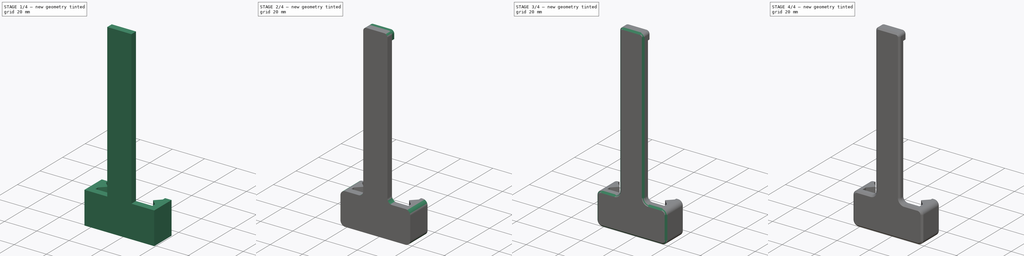
[diagram: build sequence overview — one tinted view per stage of 4, left to right]
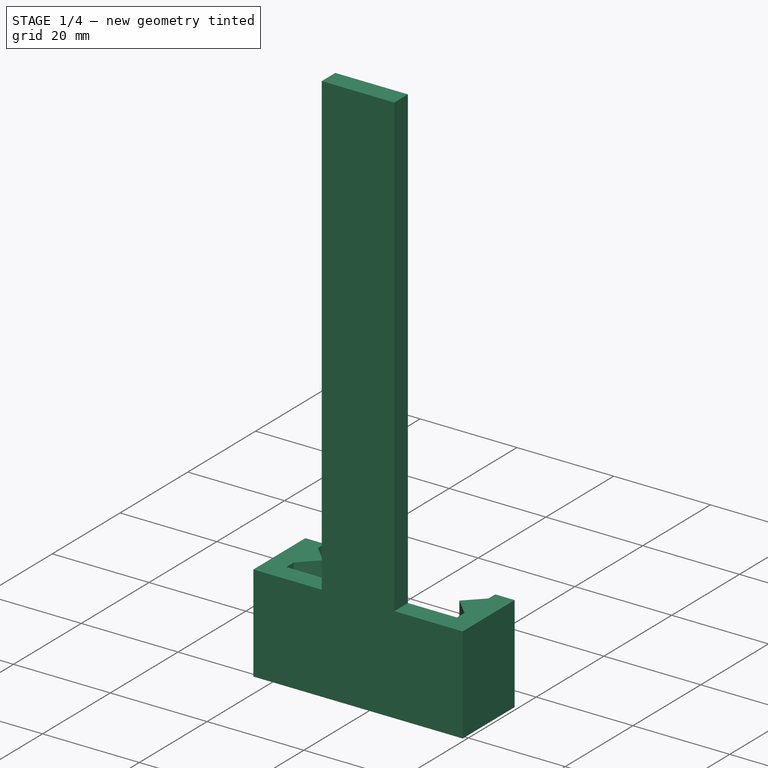
[diagram: stage 1 of 4 — iso view after this stage's code; geometry added in this stage tinted green]
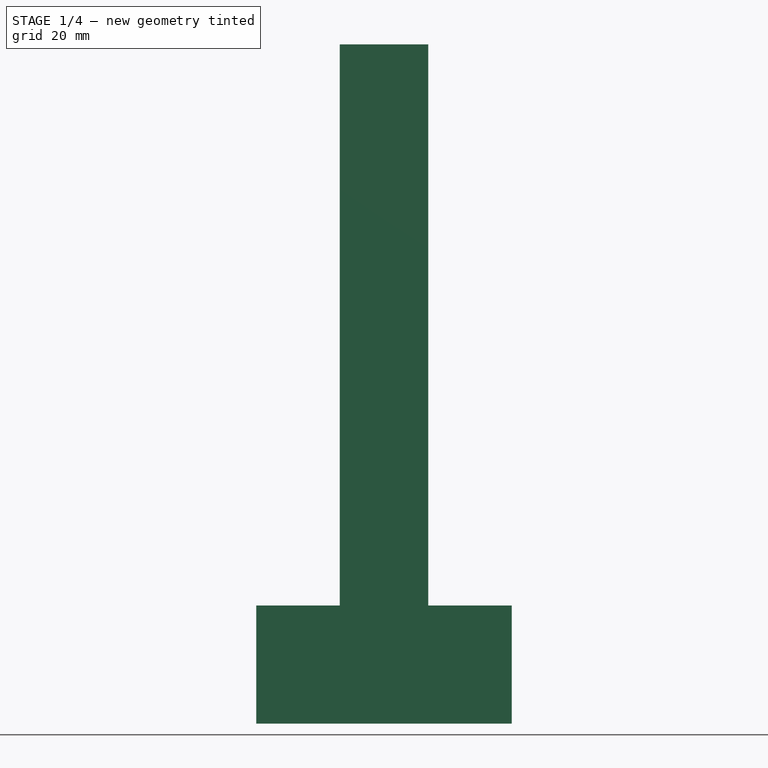
[diagram: stage 1 of 4 — front view after this stage's code; geometry added in this stage tinted green]
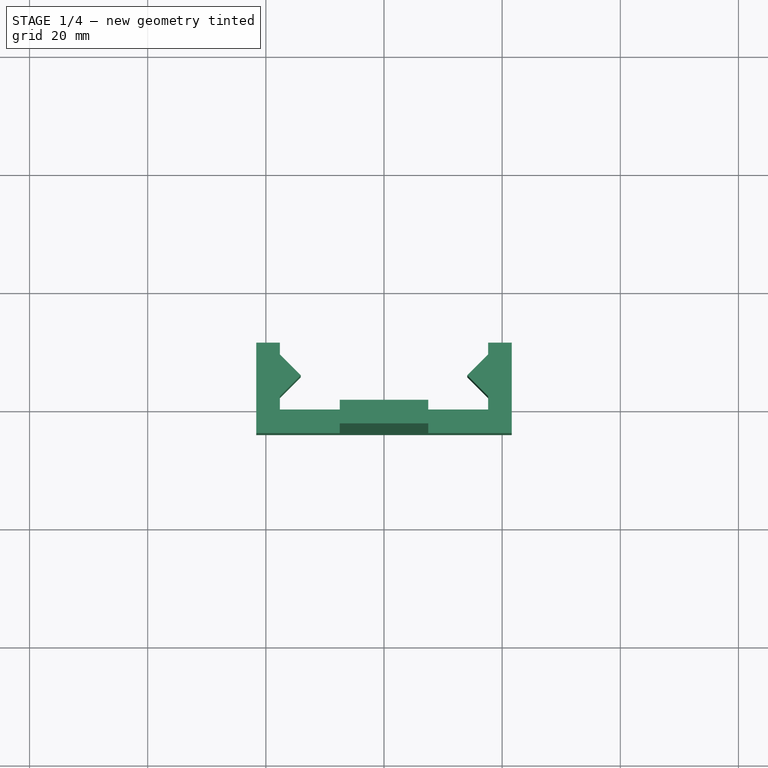
[diagram: stage 1 of 4 — top view after this stage's code; geometry added in this stage tinted green]
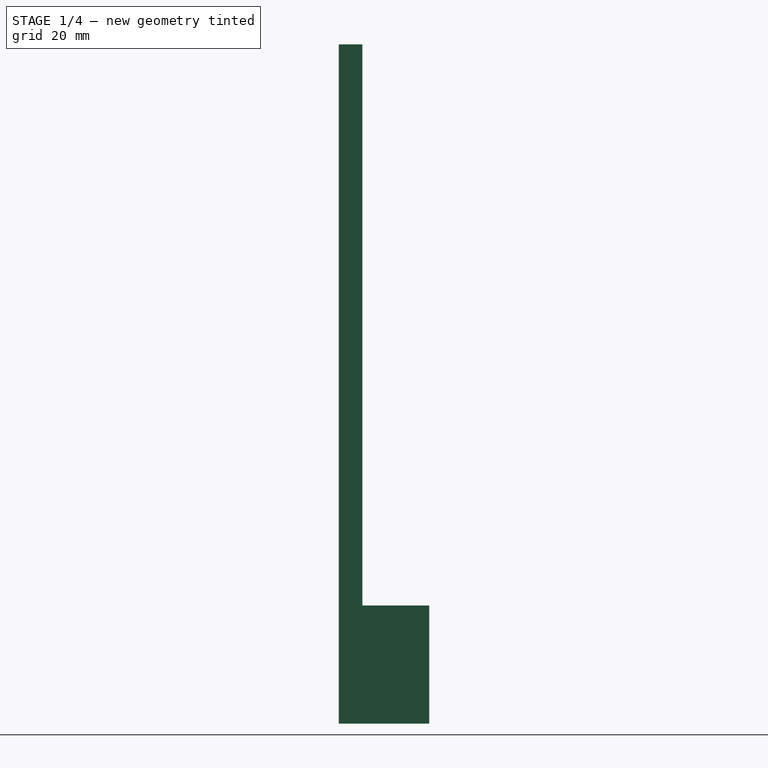
[diagram: stage 1 of 4 — right view after this stage's code; geometry added in this stage tinted green]
FCSTD DOCUMENT  (FreeCAD 0.19R)
Label: SwitchCaseSmallLatch2
License: All rights reserved
LicenseURL: http://en.wikipedia.org/wiki/All_rights_reserved
objects: PartDesign::Fillet×6, Sketcher::SketchObject×3, PartDesign::Pad×2, PartDesign::Pocket×1, PartDesign::Chamfer×1, PartDesign::Body×1
note: 24 computed .brp shape members not serialized (recipe doc carries the construction recipe); baked Part::Feature solids carry a one-line shape summary decoded from their .brp

FEATURE [Sketcher::SketchObject] Sketch
  FullyConstrained = true
  MapMode = 5
  Support = -> [XY_Plane]
  sketch-geometry (14):
    g0: LineSegment StartX=-17.625 StartY=0 StartZ=0 EndX=17.625 EndY=0 EndZ=0
    g1: LineSegment StartX=17.625 StartY=0 StartZ=0 EndX=17.625 EndY=2.25 EndZ=0
    g2: LineSegment StartX=17.625 StartY=2.25 StartZ=0 EndX=14.0895 EndY=5.78553 EndZ=0
    g3: LineSegment StartX=14.0895 StartY=5.78553 StartZ=0 EndX=17.625 EndY=9.32107 EndZ=0
    g4: LineSegment StartX=17.625 StartY=9.32107 StartZ=0 EndX=17.625 EndY=11.3211 EndZ=0
    g5: LineSegment StartX=17.625 StartY=11.3211 StartZ=0 EndX=21.625 EndY=11.3211 EndZ=0
    g6: LineSegment StartX=21.625 StartY=11.3211 StartZ=0 EndX=21.625 EndY=-4 EndZ=0
    g7: LineSegment StartX=21.625 StartY=-4 StartZ=0 EndX=-21.625 EndY=-4 EndZ=0
    g8: LineSegment StartX=-21.625 StartY=-4 StartZ=0 EndX=-21.625 EndY=11.3211 EndZ=0
    g9: LineSegment StartX=-21.625 StartY=11.3211 StartZ=0 EndX=-17.625 EndY=11.3211 EndZ=0
    g10: LineSegment StartX=-17.625 StartY=11.3211 StartZ=0 EndX=-17.625 EndY=9.32107 EndZ=0
    g11: LineSegment StartX=-17.625 StartY=9.32107 StartZ=0 EndX=-14.0895 EndY=5.78553 EndZ=0
    g12: LineSegment StartX=-14.0895 StartY=5.78553 StartZ=0 EndX=-17.625 EndY=2.25 EndZ=0
    g13: LineSegment StartX=-17.625 StartY=2.25 StartZ=0 EndX=-17.625 EndY=0 EndZ=0
  constraints (41):
    c: PointOnObject(g0,g-1)
    c: PointOnObject(g0,g-1)
    c: Coincident(g0,g1)
    c: Coincident(g1,g2)
    c: Coincident(g2,g3)
    c: Coincident(g3,g4)
    c: Coincident(g4,g5)
    c: Horizontal(g5)
    c: Coincident(g5,g6)
    c: Vertical(g6)
    c: Coincident(g6,g7)
    c: Coincident(g7,g8)
    c: Coincident(g8,g9)
    c: Horizontal(g9)
    c: Coincident(g9,g10)
    c: Coincident(g10,g11)
    c: Coincident(g11,g12)
    c: Coincident(g12,g13)
    c: Coincident(g13,g0)
    c: Vertical(g8)
    c: Vertical(g13)
    c: Vertical(g10)
    c: Vertical(g1)
    c: Vertical(g4)
    c: Equal(g11,g12)
    c: Equal(g12,g3)
    c: Equal(g3,g2)
    c: Angle(g3) = 0.785398
    c: Angle(g11) = -0.785398
    c: Perpendicular(g11,g12)
    c: Perpendicular(g3,g2)
    c: Distance(g13) = 2.25
    c: Distance(g2) = 5
    c: Equal(g10,g4)
    c: Distance(g4) = 2
    c: Equal(g1,g13)
    c: Equal(g9,g5)
    c: Distance(g9) = 4
    c: Distance(g0,g7) = 4
    c: Distance(g0) = 35.25
    c: Symmetric(g6,g7,g-2)
FEATURE [PartDesign::Pad] Pad
  Direction = (1,1,1)
  Length = 115
  Length2 = 100
  Profile = -> Sketch
  Type = 0
FEATURE [Sketcher::SketchObject] Sketch001
  FullyConstrained = true
  MapMode = 5
  Placement = pos=(0,-4,0) rot=(1,0,0;1.5708rad)
  Support = -> [Pad]
  sketch-geometry (8):
    g0: LineSegment StartX=7.5 StartY=130 StartZ=0 EndX=7.5 EndY=20 EndZ=0
    g1: LineSegment StartX=7.5 StartY=20 StartZ=0 EndX=48.935 EndY=20 EndZ=0
    g2: LineSegment StartX=48.935 StartY=20 StartZ=0 EndX=48.935 EndY=139.08 EndZ=0
    g3: LineSegment StartX=48.935 StartY=139.08 StartZ=0 EndX=-48.935 EndY=139.08 EndZ=0
    g4: LineSegment StartX=-48.935 StartY=139.08 StartZ=0 EndX=-48.935 EndY=20 EndZ=0
    g5: LineSegment StartX=-48.935 StartY=20 StartZ=0 EndX=-7.5 EndY=20 EndZ=0
    g6: LineSegment StartX=-7.5 StartY=20 StartZ=0 EndX=-7.5 EndY=130 EndZ=0
    g7: LineSegment StartX=-7.5 StartY=130 StartZ=0 EndX=7.5 EndY=130 EndZ=0
  constraints (21):
    c: Vertical(g0)
    c: Coincident(g0,g1)
    c: Horizontal(g1)
    c: Coincident(g1,g2)
    c: Coincident(g2,g3)
    c: Horizontal(g3)
    c: Coincident(g3,g4)
    c: Vertical(g4)
    c: Coincident(g4,g5)
    c: Coincident(g5,g6)
    c: Coincident(g6,g7)
    c: Coincident(g7,g0)
    c: Symmetric(g0,g6,g-2)
    c: Symmetric(g0,g5,g-2)
    c: Symmetric(g1,g4,g-2)
    c: Vertical(g2)
    c: Distance(g2) = 119.08
    c: DistanceY(g0) = 20
    c: Distance(g0) = 110
    c: Distance(g3) = 97.87
    c: Distance(g7) = 15
FEATURE [PartDesign::Pocket] Pocket
  BaseFeature = -> Pad
  Length = 5
  Length2 = 100
  Profile = -> Sketch001
  Type = 1
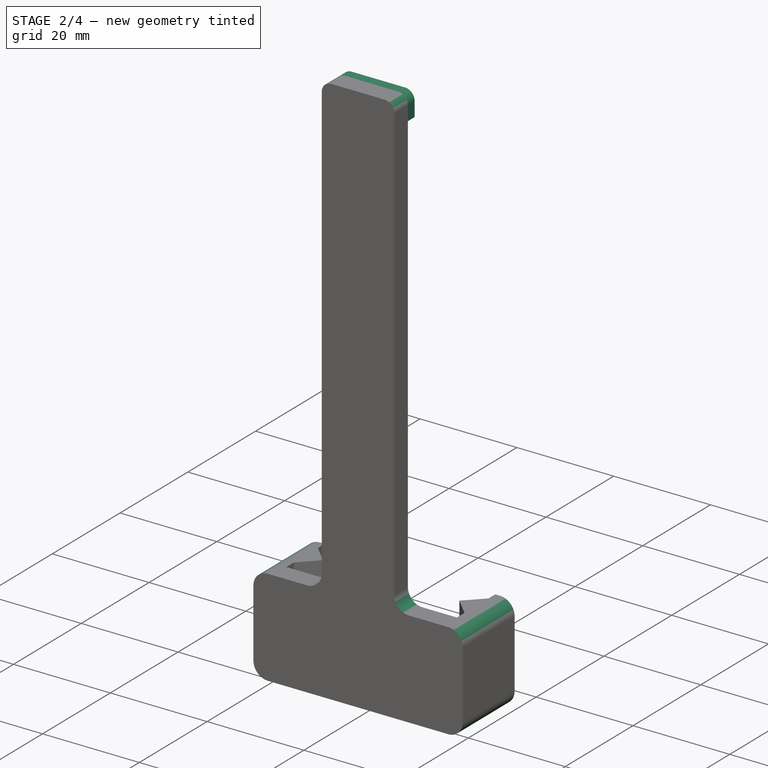
[diagram: stage 2 of 4 — iso view after this stage's code; geometry added in this stage tinted green]
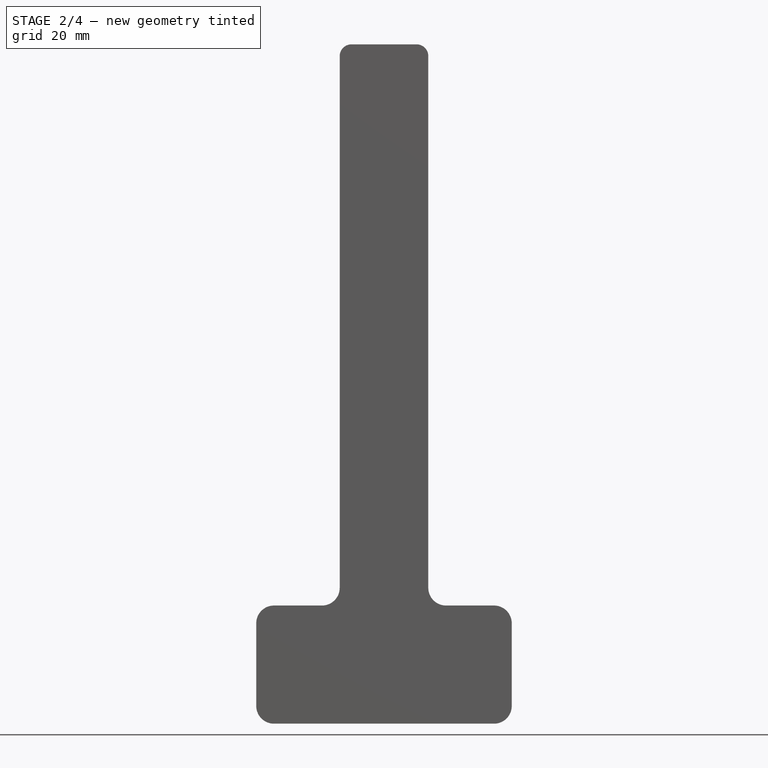
[diagram: stage 2 of 4 — front view after this stage's code; geometry added in this stage tinted green]
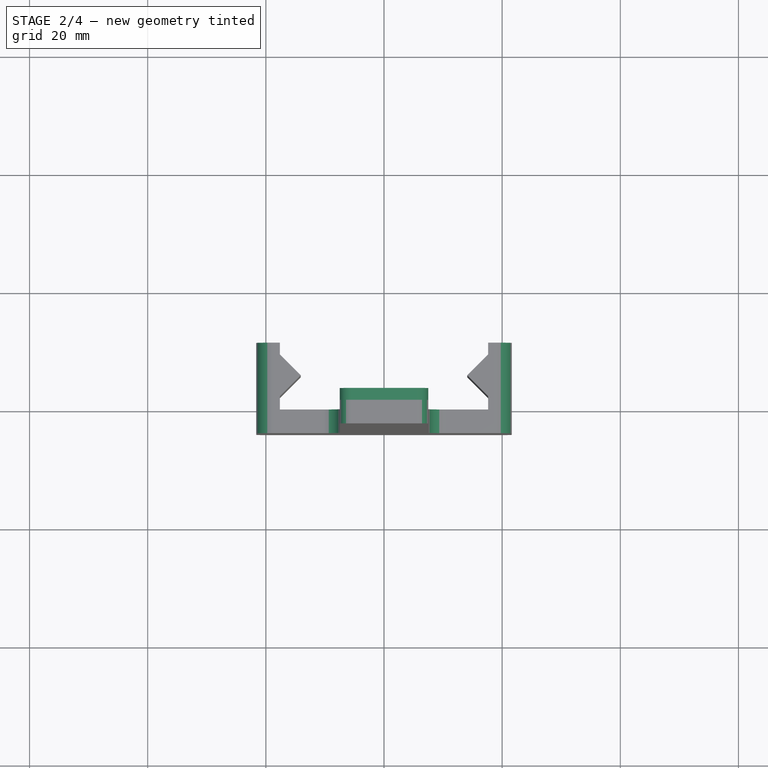
[diagram: stage 2 of 4 — top view after this stage's code; geometry added in this stage tinted green]
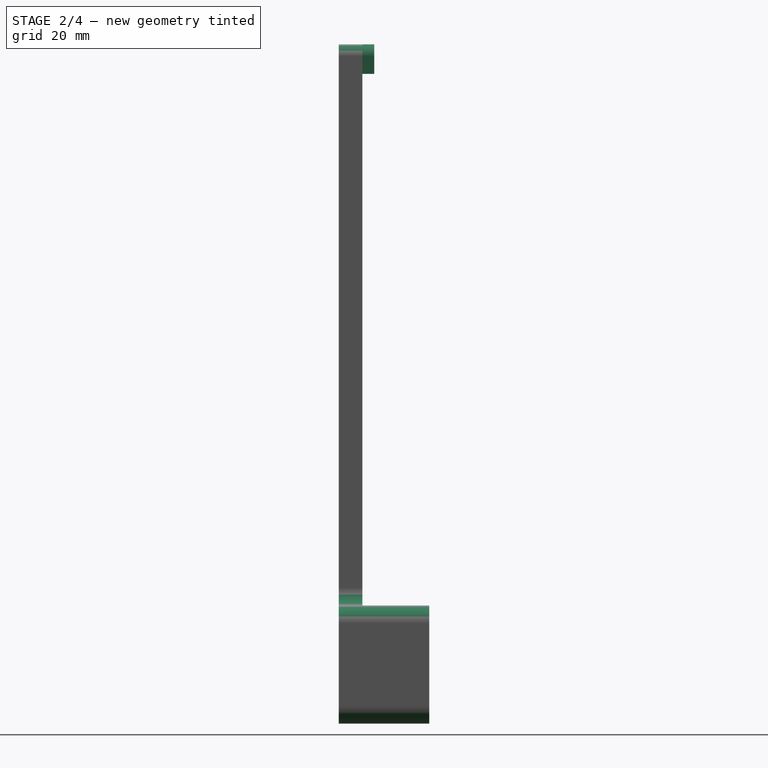
[diagram: stage 2 of 4 — right view after this stage's code; geometry added in this stage tinted green]
FEATURE [Sketcher::SketchObject] Sketch002
  ExternalGeometry = -> [Pocket]
  FullyConstrained = true
  MapMode = 5
  Placement = pos=(0,0,0) rot=(0,0.707107,0.707107;3.14159rad)
  Support = -> [Pocket]
  sketch-geometry (4):
    g0: LineSegment StartX=-7.5 StartY=115 StartZ=0 EndX=-7.5 EndY=110 EndZ=0
    g1: LineSegment StartX=-7.5 StartY=110 StartZ=0 EndX=7.5 EndY=110 EndZ=0
    g2: LineSegment StartX=7.5 StartY=110 StartZ=0 EndX=7.5 EndY=115 EndZ=0
    g3: LineSegment StartX=7.5 StartY=115 StartZ=0 EndX=-7.5 EndY=115 EndZ=0
  constraints (10):
    c: Coincident(g-5,g0)
    c: PointOnObject(g0,g-5)
    c: Coincident(g0,g1)
    c: PointOnObject(g1,g-4)
    c: Horizontal(g1)
    c: Coincident(g1,g2)
    c: Coincident(g2,g-4)
    c: Coincident(g2,g3)
    c: Coincident(g3,g0)
    c: Distance(g0) = 5
FEATURE [PartDesign::Pad] Pad001
  BaseFeature = -> Pocket
  Direction = (1,1,1)
  Length = 2
  Length2 = 100
  Profile = -> Sketch002
  Type = 0
FEATURE [PartDesign::Fillet] Fillet
  Base = -> Pad001 [Edge25,Edge14,Edge16,Edge47,Edge40,Edge30]
  BaseFeature = -> Pad001
  Radius = 3
  SupportTransform = false
FEATURE [PartDesign::Fillet] Fillet001
  Base = -> Fillet [Edge45,Edge24]
  BaseFeature = -> Fillet
  Radius = 2
  SupportTransform = false
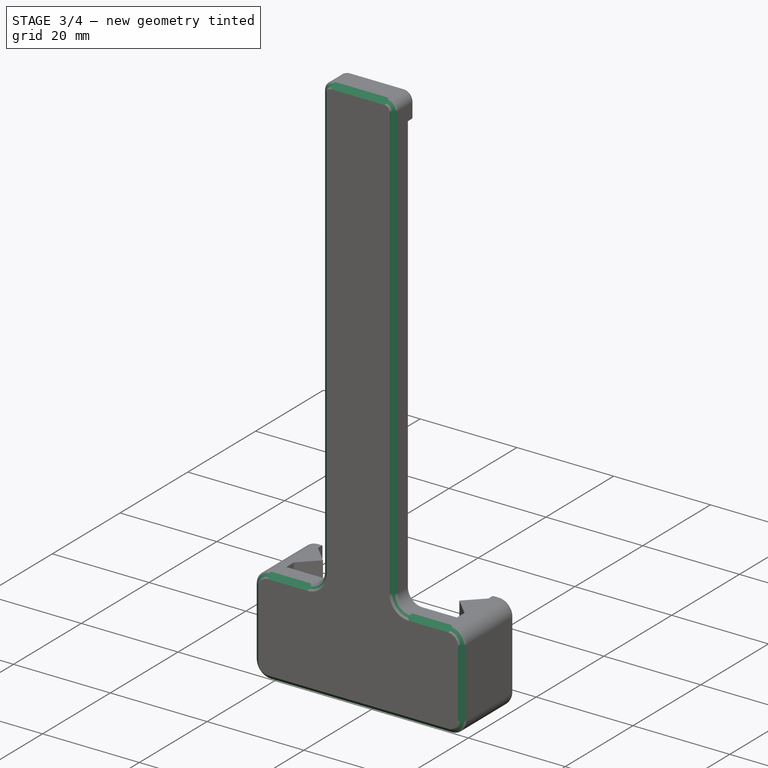
[diagram: stage 3 of 4 — iso view after this stage's code; geometry added in this stage tinted green]
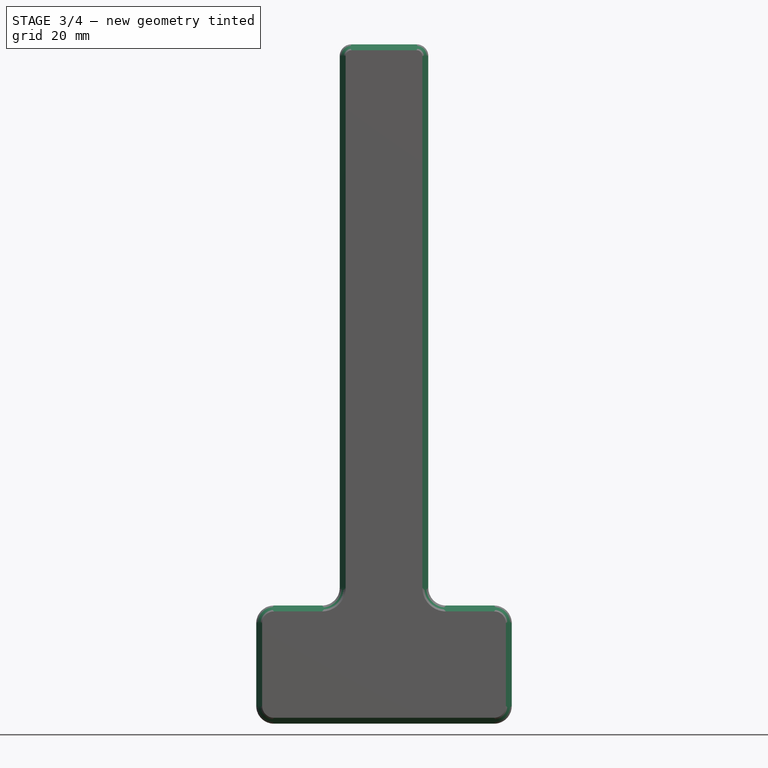
[diagram: stage 3 of 4 — front view after this stage's code; geometry added in this stage tinted green]
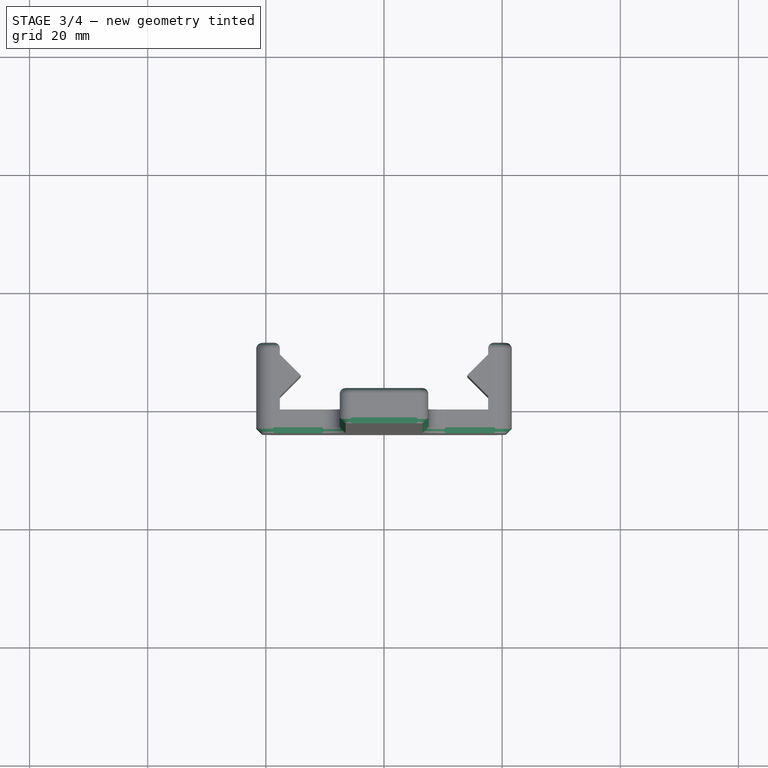
[diagram: stage 3 of 4 — top view after this stage's code; geometry added in this stage tinted green]
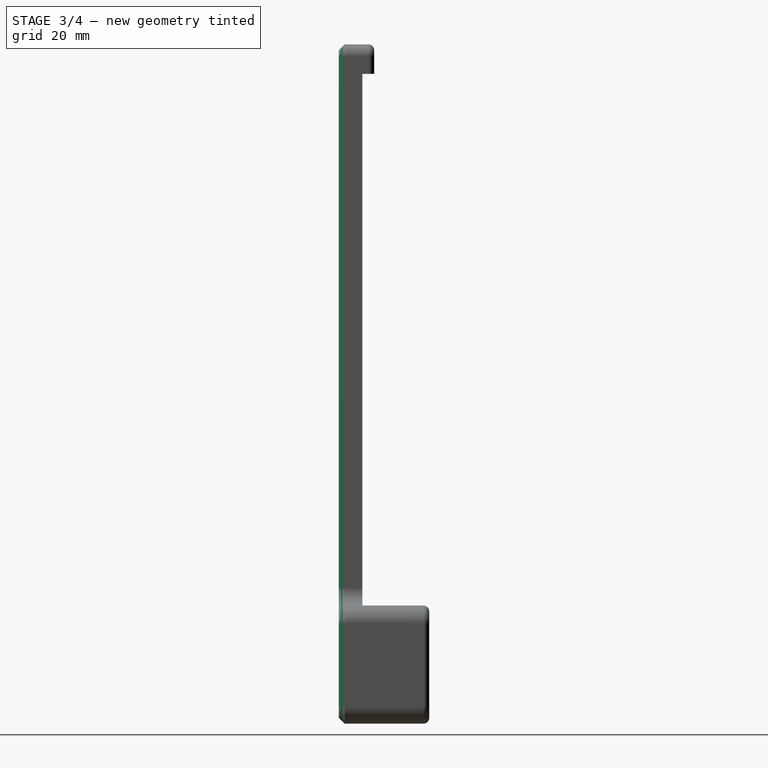
[diagram: stage 3 of 4 — right view after this stage's code; geometry added in this stage tinted green]
FEATURE [PartDesign::Chamfer] Chamfer
  Angle = 45
  Base = -> Fillet001 [Face2]
  BaseFeature = -> Fillet001
  ChamferType = 0
  FlipDirection = false
  Size = 1
  Size2 = 1
  SupportTransform = false
FEATURE [PartDesign::Fillet] Fillet002
  Base = -> Chamfer [Edge50]
  BaseFeature = -> Chamfer
  Radius = 1
  SupportTransform = false
FEATURE [PartDesign::Fillet] Fillet003
  Base = -> Fillet002 [Face50,Face44]
  BaseFeature = -> Fillet002
  Radius = 1
  SupportTransform = false
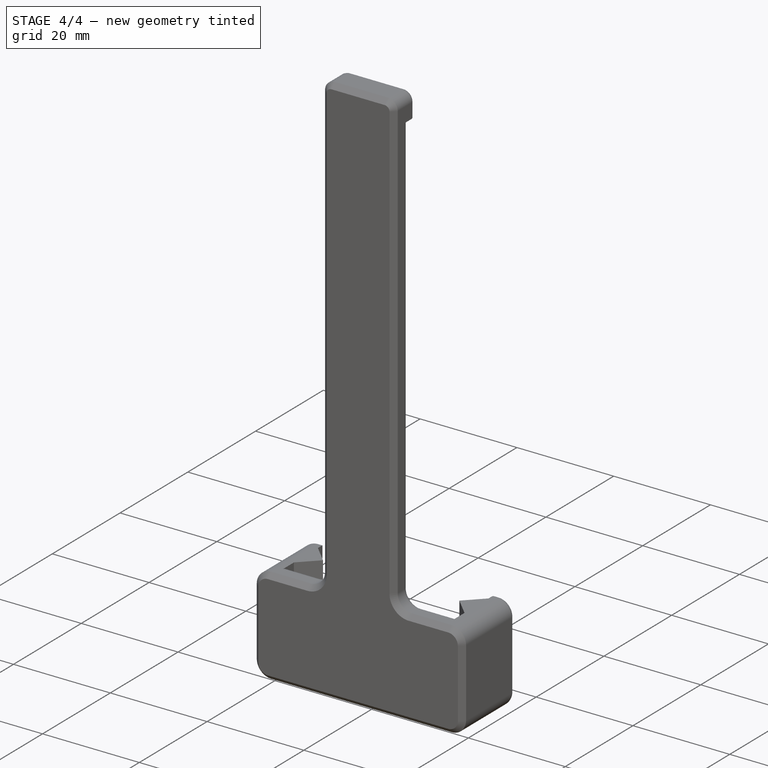
[diagram: stage 4 of 4 — iso view after this stage's code; geometry added in this stage tinted green]
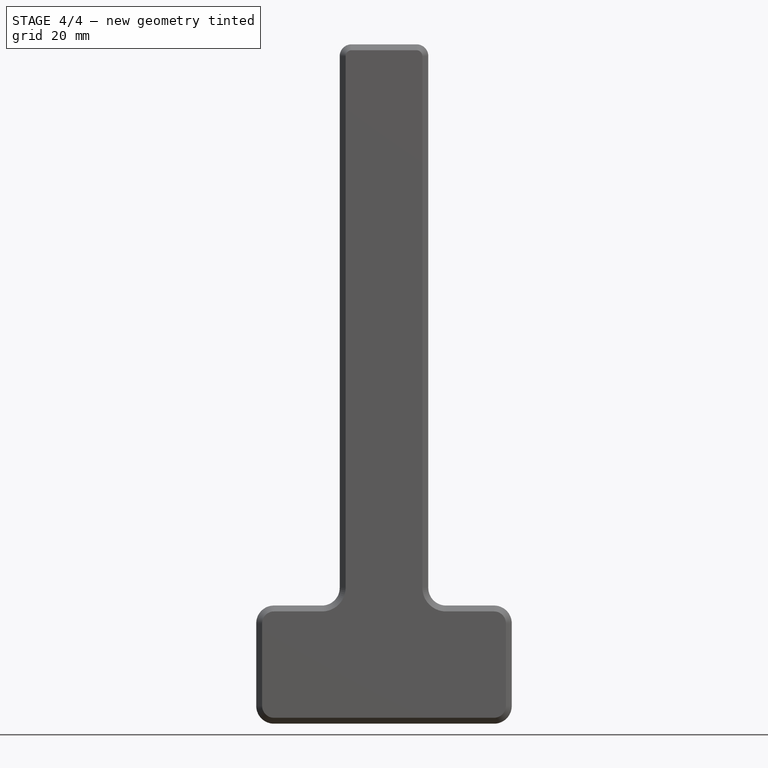
[diagram: stage 4 of 4 — front view after this stage's code; geometry added in this stage tinted green]
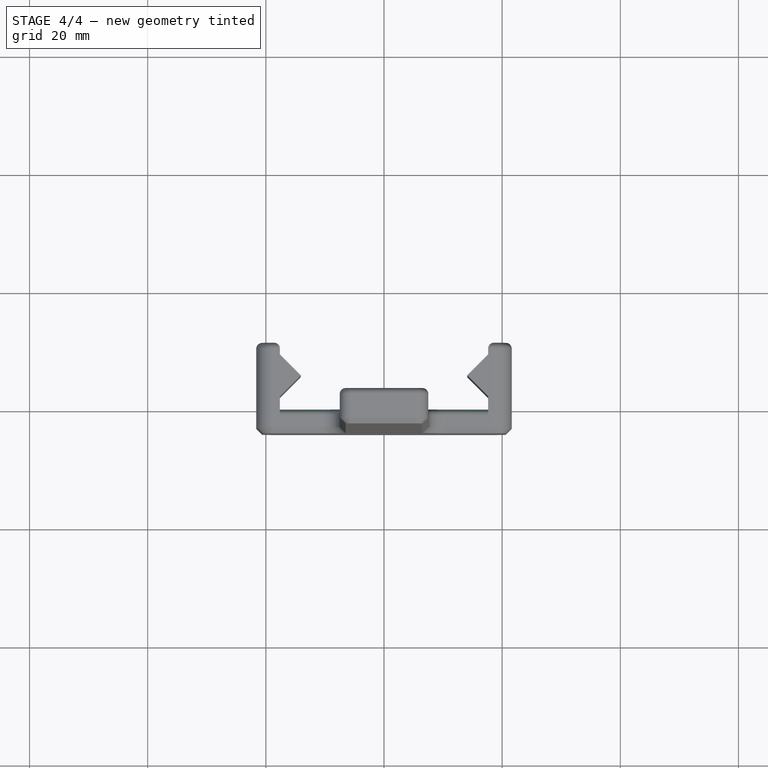
[diagram: stage 4 of 4 — top view after this stage's code; geometry added in this stage tinted green]
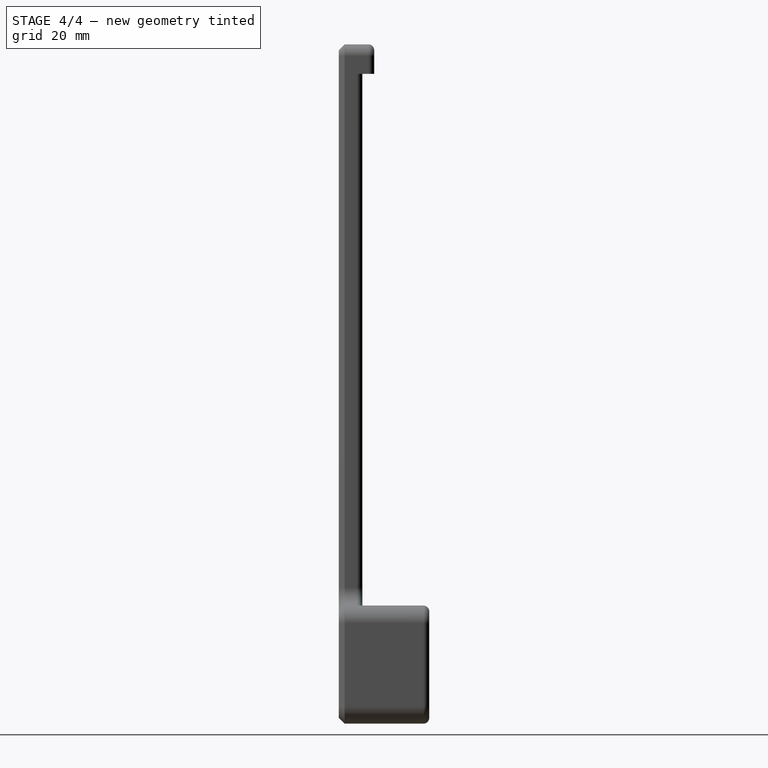
[diagram: stage 4 of 4 — right view after this stage's code; geometry added in this stage tinted green]
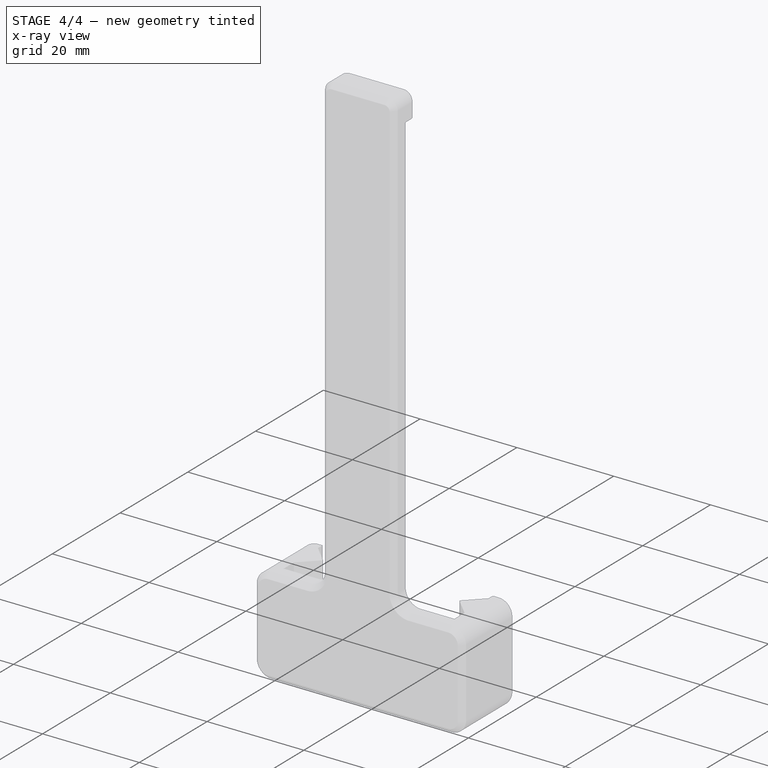
[diagram: stage 4 of 4 — x-ray composite at the iso view; earlier geometry ghosted, this stage's added geometry solid]
FEATURE [PartDesign::Fillet] Fillet004
  Base = -> Fillet003 [Edge31]
  BaseFeature = -> Fillet003
  Radius = 1
  SupportTransform = false
FEATURE [PartDesign::Fillet] Fillet005
  Base = -> Fillet004 [Edge3]
  BaseFeature = -> Fillet004
  Radius = 1
  SupportTransform = false
FEATURE [PartDesign::Body] Body
  Group = -> [Sketch,Pad,Sketch001,Pocket,Sketch002,Pad001,Fillet,Fillet001,Chamfer,Fillet002,Fillet003,Fillet004,Fillet005]
  Origin = -> Origin
  Tip = -> Fillet005
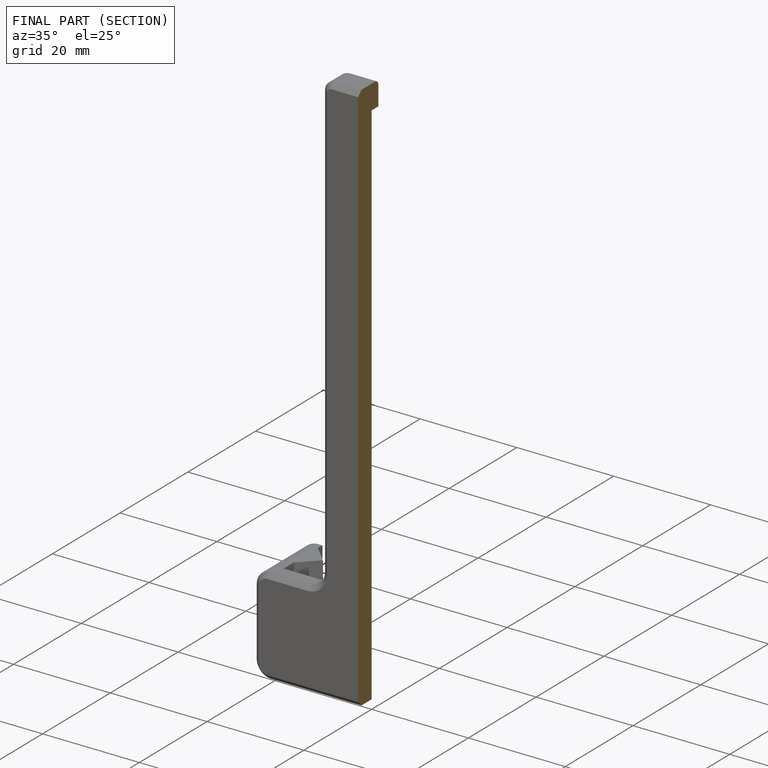
[diagram: finished part — half-section view (interior)]
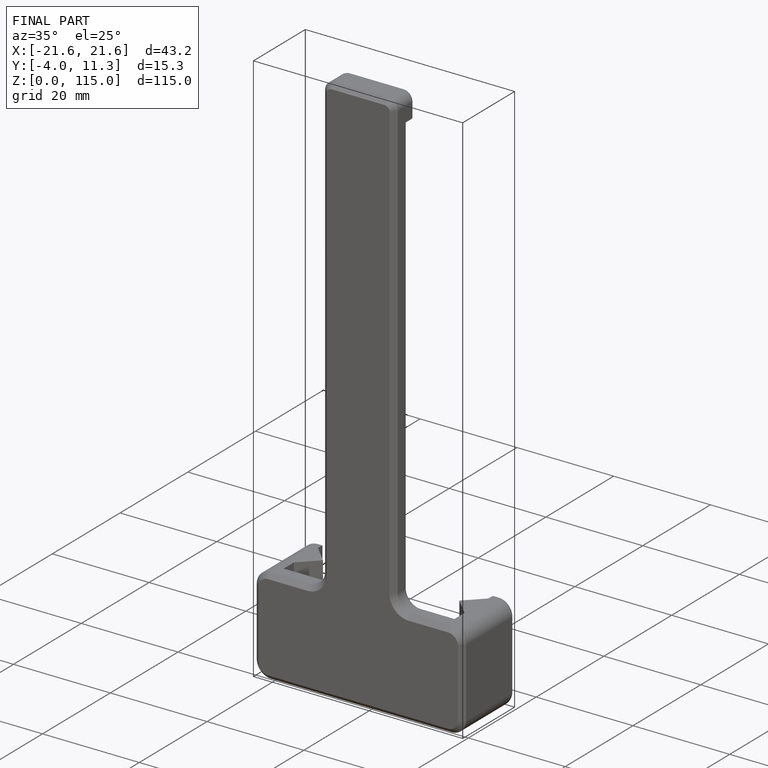
[diagram: finished part — iso view with bounding-box wireframe]
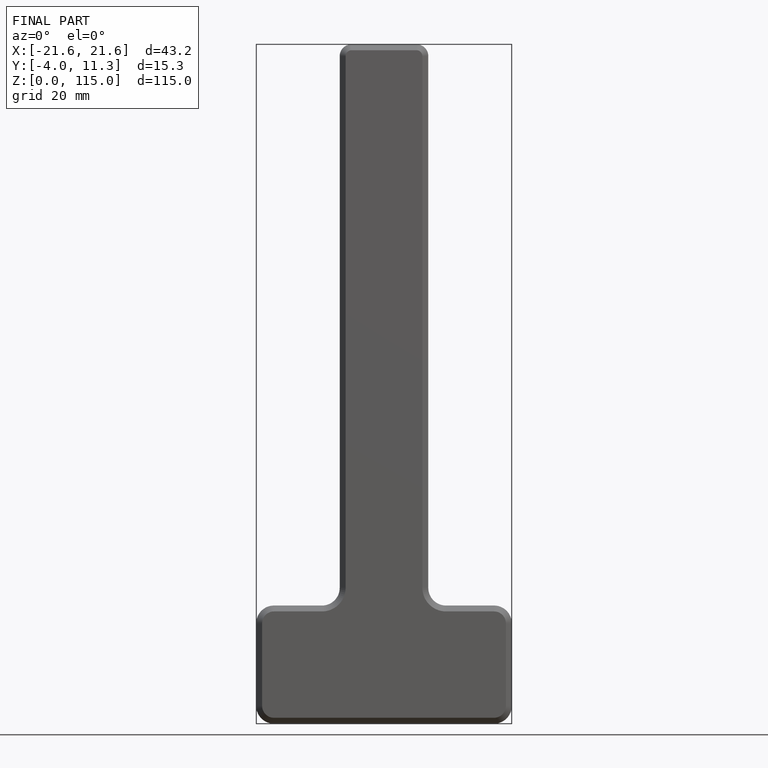
[diagram: finished part — front view with bounding-box wireframe]
